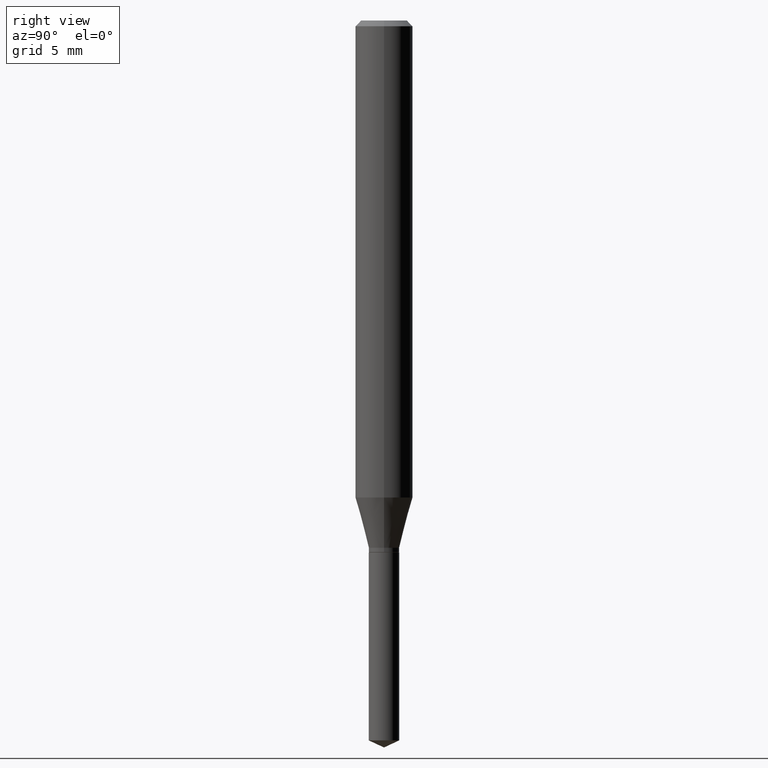
[diagram: clean part render]
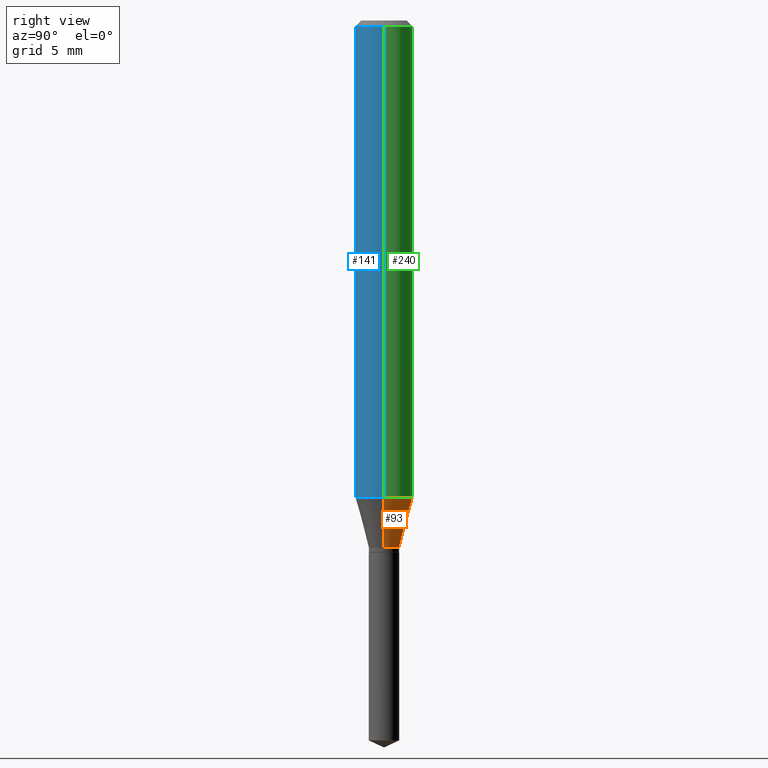
[diagram: same view with three faces highlighted in distinct colors, each labeled with its STEP entity id]
A machine part, right view with three faces highlighted in distinct colors.
Their STEP definitions:

[orange] entity #93 — the highlighted conical surface has half-angle 15 deg.
#11 = ORIENTED_EDGE ( 'NONE', *, *, #67, .T. ) ;
#35 = ORIENTED_EDGE ( 'NONE', *, *, #289, .F. ) ;
#58 = CARTESIAN_POINT ( 'NONE',  ( 0.05905000000000011628, -3.839357142326876836E-15, -0.9815355900899632724 ) ) ;
#59 = DIRECTION ( 'NONE',  ( 1.000000000000000000, -6.982962677686273810E-15, 0.000000000000000000 ) ) ;
#60 = FACE_OUTER_BOUND ( 'NONE', #81, .T. ) ;
#67 = EDGE_CURVE ( 'NONE', #326, #384, #149, .T. ) ;
#81 = EDGE_LOOP ( 'NONE', ( #11, #400, #235, #35 ) ) ;
#85 = DIRECTION ( 'NONE',  ( -2.445468806185136597E-29, 3.491481338843145583E-15, 1.000000000000000000 ) ) ;
#89 = VECTOR ( 'NONE', #262, 39.37007874015748143 ) ;
#92 = VERTEX_POINT ( 'NONE', #58 ) ;
#93 = ADVANCED_FACE ( 'NONE', ( #60 ), #424, .T. ) ;
#131 = DIRECTION ( 'NONE',  ( 0.2588190451025211281, 1.565188264969623940E-15, 0.9659258262890682012 ) ) ;
#135 = DIRECTION ( 'NONE',  ( -2.445468806185136597E-29, 3.491481338843145583E-15, 1.000000000000000000 ) ) ;
#144 = VERTEX_POINT ( 'NONE', #341 ) ;
#149 = CIRCLE ( 'NONE', #364, 0.03130000000000000143 ) ;
#159 = CARTESIAN_POINT ( 'NONE',  ( 2.400314667725525909E-29, -3.427013196209501521E-15, -0.9815355900899632724 ) ) ;
#171 = DIRECTION ( 'NONE',  ( 1.000000000000000000, -6.982962677686273810E-15, 0.000000000000000000 ) ) ;
#194 = EDGE_CURVE ( 'NONE', #384, #144, #376, .T. ) ;
#224 = CARTESIAN_POINT ( 'NONE',  ( -0.03130000000000000143, -3.566206524485785609E-15, -1.085099999999999953 ) ) ;
#231 = CARTESIAN_POINT ( 'NONE',  ( -0.03130000000000000143, -3.581743616443637386E-15, -1.085099999999999953 ) ) ;
#235 = ORIENTED_EDGE ( 'NONE', *, *, #312, .F. ) ;
#236 = CARTESIAN_POINT ( 'NONE',  ( 0.03130000000000000143, -4.007173132590277064E-15, -1.085099999999999953 ) ) ;
#246 = AXIS2_PLACEMENT_3D ( 'NONE', #159, #85, #427 ) ;
#262 = DIRECTION ( 'NONE',  ( -0.2588190451025211281, 5.211531920934548675E-15, 0.9659258262890682012 ) ) ;
#286 = CARTESIAN_POINT ( 'NONE',  ( 2.653578201591491275E-29, -3.788606400778696929E-15, -1.085099999999999953 ) ) ;
#289 = EDGE_CURVE ( 'NONE', #326, #92, #387, .T. ) ;
#311 = CIRCLE ( 'NONE', #246, 0.05905000000000011628 ) ;
#312 = EDGE_CURVE ( 'NONE', #92, #144, #311, .T. ) ;
#313 = CARTESIAN_POINT ( 'NONE',  ( 0.03130000000000000143, -4.007173132590277064E-15, -1.085099999999999953 ) ) ;
#321 = CARTESIAN_POINT ( 'NONE',  ( 2.653578201591491275E-29, -3.788606400778696929E-15, -1.085099999999999953 ) ) ;
#326 = VERTEX_POINT ( 'NONE', #236 ) ;
#327 = DIRECTION ( 'NONE',  ( -2.445468806185136597E-29, 3.491481338843145583E-15, 1.000000000000000000 ) ) ;
#341 = CARTESIAN_POINT ( 'NONE',  ( -0.05905000000000011628, -3.007437710743162028E-15, -0.9815355900899632724 ) ) ;
#345 = AXIS2_PLACEMENT_3D ( 'NONE', #321, #135, #59 ) ;
#364 = AXIS2_PLACEMENT_3D ( 'NONE', #286, #327, #171 ) ;
#376 = LINE ( 'NONE', #224, #89 ) ;
#384 = VERTEX_POINT ( 'NONE', #231 ) ;
#387 = LINE ( 'NONE', #313, #465 ) ;
#400 = ORIENTED_EDGE ( 'NONE', *, *, #194, .T. ) ;
#424 = CONICAL_SURFACE ( 'NONE', #345, 0.03130000000000000143, 0.2617993877991497964 ) ;
#427 = DIRECTION ( 'NONE',  ( 1.000000000000000000, -6.982962677686266711E-15, 0.000000000000000000 ) ) ;
#465 = VECTOR ( 'NONE', #131, 39.37007874015748143 ) ;

[blue] entity #141 — the highlighted cylindrical surface (edge-blend (fillet) strip) has radius 1.4999 mm, axis along (-0, 0, 1).
#37 = DIRECTION ( 'NONE',  ( 1.000000000000000000, -6.982962677686266711E-15, 0.000000000000000000 ) ) ;
#58 = CARTESIAN_POINT ( 'NONE',  ( 0.05905000000000011628, -3.839357142326876836E-15, -0.9815355900899632724 ) ) ;
#61 = VECTOR ( 'NONE', #305, 39.37007874015748143 ) ;
#76 = LINE ( 'NONE', #222, #478 ) ;
#90 = ORIENTED_EDGE ( 'NONE', *, *, #111, .F. ) ;
#92 = VERTEX_POINT ( 'NONE', #58 ) ;
#107 = DIRECTION ( 'NONE',  ( -2.445468806185136597E-29, 3.491481338843145583E-15, 1.000000000000000000 ) ) ;
#111 = EDGE_CURVE ( 'NONE', #144, #191, #225, .T. ) ;
#141 = ADVANCED_FACE ( 'NONE', ( #456 ), #181, .T. ) ;
#143 = CIRCLE ( 'NONE', #354, 0.05905000000000011628 ) ;
#144 = VERTEX_POINT ( 'NONE', #341 ) ;
#150 = CIRCLE ( 'NONE', #241, 0.05904999999999999832 ) ;
#156 = EDGE_CURVE ( 'NONE', #92, #175, #76, .T. ) ;
#163 = ORIENTED_EDGE ( 'NONE', *, *, #156, .T. ) ;
#175 = VERTEX_POINT ( 'NONE', #183 ) ;
#181 = CYLINDRICAL_SURFACE ( 'NONE', #208, 0.05905000000000006077 ) ;
#183 = CARTESIAN_POINT ( 'NONE',  ( 0.05904999999999999832, -4.535783407291118600E-16, -0.01181000000000007218 ) ) ;
#185 = DIRECTION ( 'NONE',  ( -2.445468806185136877E-29, 3.491481338843145188E-15, 1.000000000000000000 ) ) ;
#191 = VERTEX_POINT ( 'NONE', #446 ) ;
#203 = EDGE_CURVE ( 'NONE', #191, #175, #150, .T. ) ;
#208 = AXIS2_PLACEMENT_3D ( 'NONE', #302, #482, #405 ) ;
#218 = EDGE_CURVE ( 'NONE', #144, #92, #143, .T. ) ;
#220 = ORIENTED_EDGE ( 'NONE', *, *, #218, .T. ) ;
#222 = CARTESIAN_POINT ( 'NONE',  ( 0.05905000000000006077, -4.123439461173744764E-16, 2.879382386107503023E-30 ) ) ;
#225 = LINE ( 'NONE', #414, #61 ) ;
#241 = AXIS2_PLACEMENT_3D ( 'NONE', #260, #107, #296 ) ;
#260 = CARTESIAN_POINT ( 'NONE',  ( 2.888098660104664204E-31, -4.123439461173780263E-17, -0.01181000000000007218 ) ) ;
#296 = DIRECTION ( 'NONE',  ( 1.000000000000000000, -6.982962677686266711E-15, 0.000000000000000000 ) ) ;
#302 = CARTESIAN_POINT ( 'NONE',  ( 0.000000000000000000, 0.000000000000000000, 0.000000000000000000 ) ) ;
#305 = DIRECTION ( 'NONE',  ( -2.445468806185136877E-29, 3.491481338843145188E-15, 1.000000000000000000 ) ) ;
#333 = DIRECTION ( 'NONE',  ( -2.445468806185136597E-29, 3.491481338843145583E-15, 1.000000000000000000 ) ) ;
#341 = CARTESIAN_POINT ( 'NONE',  ( -0.05905000000000011628, -3.007437710743162028E-15, -0.9815355900899632724 ) ) ;
#354 = AXIS2_PLACEMENT_3D ( 'NONE', #373, #333, #37 ) ;
#373 = CARTESIAN_POINT ( 'NONE',  ( 2.400314667725525909E-29, -3.427013196209501521E-15, -0.9815355900899632724 ) ) ;
#386 = EDGE_LOOP ( 'NONE', ( #90, #220, #163, #429 ) ) ;
#405 = DIRECTION ( 'NONE',  ( 1.000000000000000000, -6.982962677686266711E-15, 4.876176775795935793E-29 ) ) ;
#414 = CARTESIAN_POINT ( 'NONE',  ( -0.05905000000000006077, 4.195754854663395916E-16, -2.904631170795524694E-30 ) ) ;
#429 = ORIENTED_EDGE ( 'NONE', *, *, #203, .F. ) ;
#446 = CARTESIAN_POINT ( 'NONE',  ( -0.05904999999999999832, -1.314548309944279343E-15, -0.01181000000000007218 ) ) ;
#456 = FACE_OUTER_BOUND ( 'NONE', #386, .T. ) ;
#478 = VECTOR ( 'NONE', #185, 39.37007874015748143 ) ;
#482 = DIRECTION ( 'NONE',  ( -2.445468806185136597E-29, 3.491481338843145583E-15, 1.000000000000000000 ) ) ;

[green] entity #240 — the highlighted cylindrical surface (edge-blend (fillet) strip) has radius 1.4999 mm, axis along (-0, 0, 1).
#58 = CARTESIAN_POINT ( 'NONE',  ( 0.05905000000000011628, -3.839357142326876836E-15, -0.9815355900899632724 ) ) ;
#61 = VECTOR ( 'NONE', #305, 39.37007874015748143 ) ;
#76 = LINE ( 'NONE', #222, #478 ) ;
#78 = CARTESIAN_POINT ( 'NONE',  ( 0.000000000000000000, 0.000000000000000000, 0.000000000000000000 ) ) ;
#85 = DIRECTION ( 'NONE',  ( -2.445468806185136597E-29, 3.491481338843145583E-15, 1.000000000000000000 ) ) ;
#86 = EDGE_LOOP ( 'NONE', ( #282, #366, #263, #425 ) ) ;
#92 = VERTEX_POINT ( 'NONE', #58 ) ;
#96 = AXIS2_PLACEMENT_3D ( 'NONE', #486, #338, #108 ) ;
#105 = DIRECTION ( 'NONE',  ( -2.445468806185136597E-29, 3.491481338843145583E-15, 1.000000000000000000 ) ) ;
#108 = DIRECTION ( 'NONE',  ( 1.000000000000000000, -6.982962677686266711E-15, 0.000000000000000000 ) ) ;
#111 = EDGE_CURVE ( 'NONE', #144, #191, #225, .T. ) ;
#113 = CYLINDRICAL_SURFACE ( 'NONE', #458, 0.05905000000000006077 ) ;
#144 = VERTEX_POINT ( 'NONE', #341 ) ;
#156 = EDGE_CURVE ( 'NONE', #92, #175, #76, .T. ) ;
#159 = CARTESIAN_POINT ( 'NONE',  ( 2.400314667725525909E-29, -3.427013196209501521E-15, -0.9815355900899632724 ) ) ;
#175 = VERTEX_POINT ( 'NONE', #183 ) ;
#183 = CARTESIAN_POINT ( 'NONE',  ( 0.05904999999999999832, -4.535783407291118600E-16, -0.01181000000000007218 ) ) ;
#185 = DIRECTION ( 'NONE',  ( -2.445468806185136877E-29, 3.491481338843145188E-15, 1.000000000000000000 ) ) ;
#190 = EDGE_CURVE ( 'NONE', #175, #191, #310, .T. ) ;
#191 = VERTEX_POINT ( 'NONE', #446 ) ;
#222 = CARTESIAN_POINT ( 'NONE',  ( 0.05905000000000006077, -4.123439461173744764E-16, 2.879382386107503023E-30 ) ) ;
#225 = LINE ( 'NONE', #414, #61 ) ;
#227 = DIRECTION ( 'NONE',  ( 1.000000000000000000, -6.982962677686266711E-15, 4.876176775795935793E-29 ) ) ;
#240 = ADVANCED_FACE ( 'NONE', ( #404 ), #113, .T. ) ;
#246 = AXIS2_PLACEMENT_3D ( 'NONE', #159, #85, #427 ) ;
#263 = ORIENTED_EDGE ( 'NONE', *, *, #190, .F. ) ;
#282 = ORIENTED_EDGE ( 'NONE', *, *, #312, .T. ) ;
#305 = DIRECTION ( 'NONE',  ( -2.445468806185136877E-29, 3.491481338843145188E-15, 1.000000000000000000 ) ) ;
#310 = CIRCLE ( 'NONE', #96, 0.05904999999999999832 ) ;
#311 = CIRCLE ( 'NONE', #246, 0.05905000000000011628 ) ;
#312 = EDGE_CURVE ( 'NONE', #92, #144, #311, .T. ) ;
#338 = DIRECTION ( 'NONE',  ( -2.445468806185136597E-29, 3.491481338843145583E-15, 1.000000000000000000 ) ) ;
#341 = CARTESIAN_POINT ( 'NONE',  ( -0.05905000000000011628, -3.007437710743162028E-15, -0.9815355900899632724 ) ) ;
#366 = ORIENTED_EDGE ( 'NONE', *, *, #111, .T. ) ;
#404 = FACE_OUTER_BOUND ( 'NONE', #86, .T. ) ;
#414 = CARTESIAN_POINT ( 'NONE',  ( -0.05905000000000006077, 4.195754854663395916E-16, -2.904631170795524694E-30 ) ) ;
#425 = ORIENTED_EDGE ( 'NONE', *, *, #156, .F. ) ;
#427 = DIRECTION ( 'NONE',  ( 1.000000000000000000, -6.982962677686266711E-15, 0.000000000000000000 ) ) ;
#446 = CARTESIAN_POINT ( 'NONE',  ( -0.05904999999999999832, -1.314548309944279343E-15, -0.01181000000000007218 ) ) ;
#458 = AXIS2_PLACEMENT_3D ( 'NONE', #78, #105, #227 ) ;
#478 = VECTOR ( 'NONE', #185, 39.37007874015748143 ) ;
#486 = CARTESIAN_POINT ( 'NONE',  ( 2.888098660104664204E-31, -4.123439461173780263E-17, -0.01181000000000007218 ) ) ;